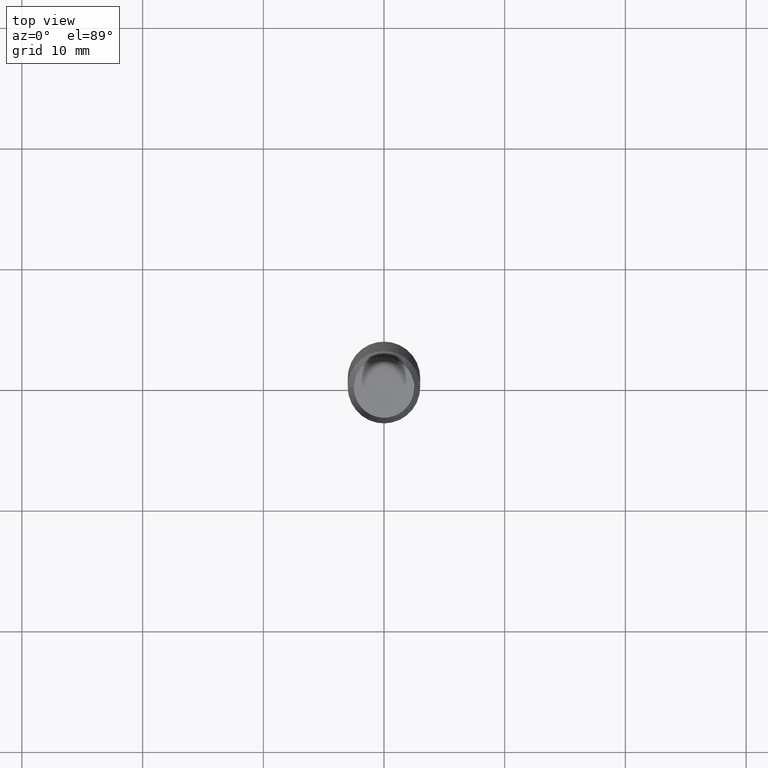
[diagram: clean part render]
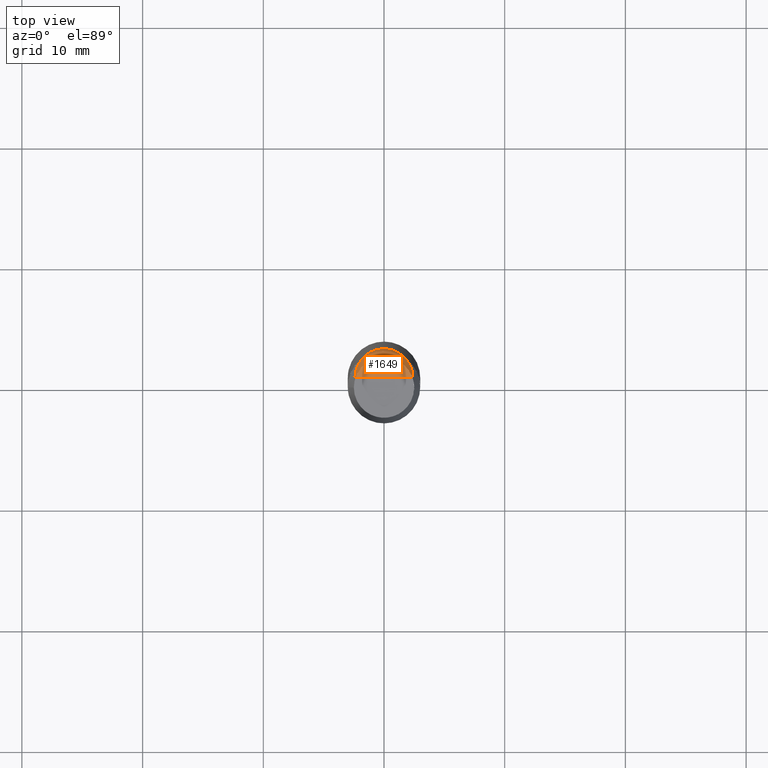
[diagram: same view with one face highlighted and labeled with its STEP entity id]
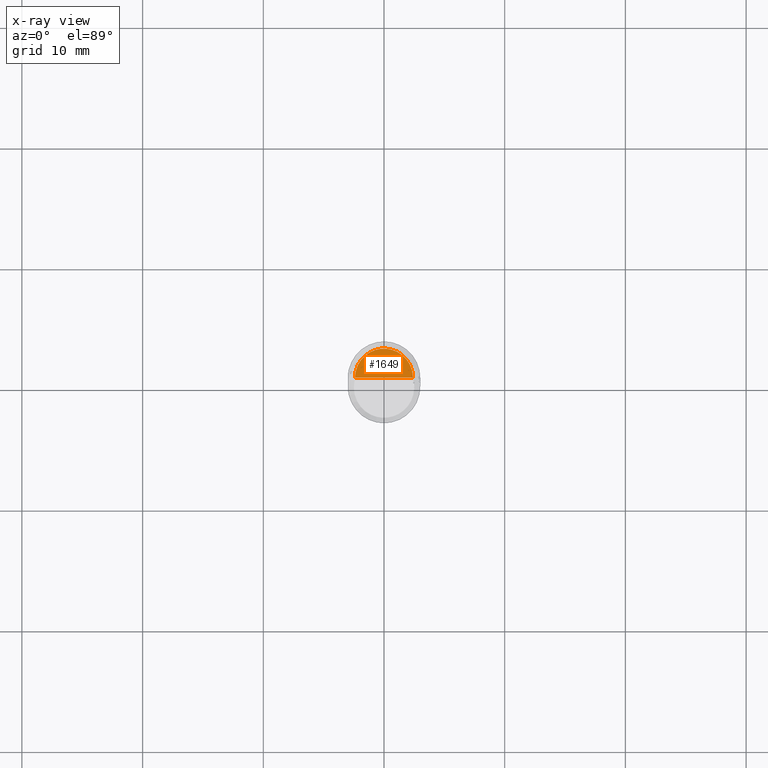
[diagram: x-ray of the same camera — body ghosted, the highlighted face saturated]
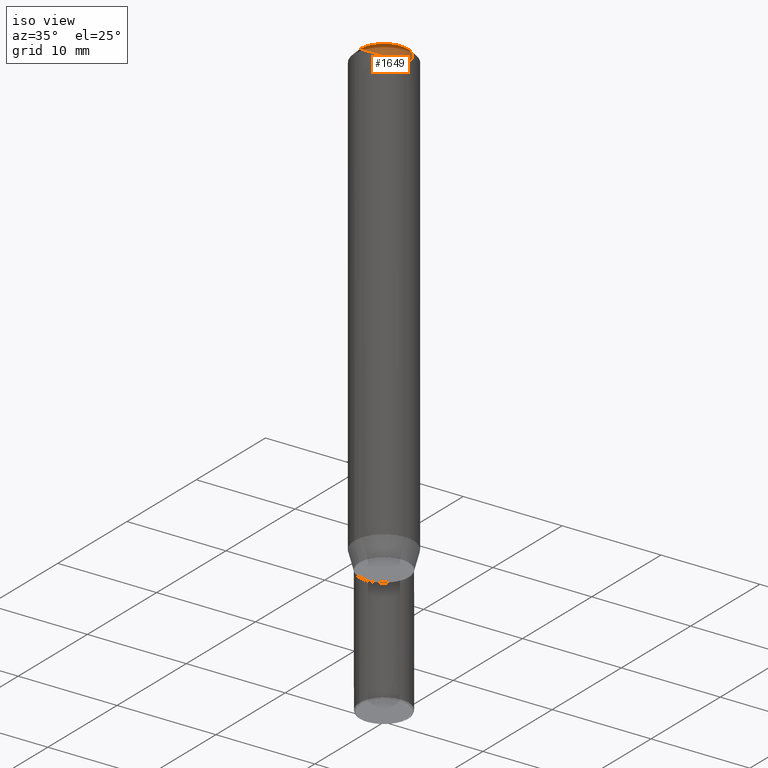
[diagram: same view with one face highlighted and labeled with its STEP entity id]
A machine part, top view. The second image highlights one B-rep face of the part: STEP entity #1649.
The next image is the same camera in x-ray: the body ghosted, the highlighted face saturated — about 0% of this face is hidden behind the body in this view.
A second angle (iso view) of the same face is appended — the face is thin or edge-on in the first view.
In plain terms, the highlighted face is a freeform B-spline surface patch.
Its self-contained STEP definition (entity closure, byte-faithful):
#1386=CARTESIAN_POINT('',(2.4,0.0,45.133974596216));
#1387=CARTESIAN_POINT('',(2.4,2.4,45.133974596216));
#1388=CARTESIAN_POINT('',(0.0,2.4,45.133974596216));
#1389=CARTESIAN_POINT('',(-2.4,2.4,45.133974596216));
#1390=CARTESIAN_POINT('',(-2.4,0.0,45.133974596216));
#1391=CARTESIAN_POINT('',(0.0,0.0,45.133974596216));
#1634=(
BOUNDED_SURFACE()
B_SPLINE_SURFACE(1,2,(
(#1386,#1387,#1388,#1389,#1390),
(#1391,#1391,#1391,#1391,#1391)
), .UNSPECIFIED.,.F.,.F.,.F.)
B_SPLINE_SURFACE_WITH_KNOTS((2,2),(3,2,3),(
0.0,1.0),(
0.0,0.5,1.0), .UNSPECIFIED.)
GEOMETRIC_REPRESENTATION_ITEM()
RATIONAL_B_SPLINE_SURFACE(((1.0,0.707106781187,1.0,0.707106781187,1.0),
(1.0,0.707106781187,1.0,0.707106781187,1.0)
))
REPRESENTATION_ITEM('')
SURFACE()
);
#1635=(
BOUNDED_CURVE()
B_SPLINE_CURVE(1,(#1391,#1386),.UNSPECIFIED.,.F.,.F.)
B_SPLINE_CURVE_WITH_KNOTS((2,2),
(0.0,1.0),.UNSPECIFIED.)
CURVE()
GEOMETRIC_REPRESENTATION_ITEM()
RATIONAL_B_SPLINE_CURVE((1.0,1.0))
REPRESENTATION_ITEM('')
);
#1636=(
BOUNDED_CURVE()
B_SPLINE_CURVE(2,(#1386,#1387,#1388,#1389,#1390),.UNSPECIFIED.,.F.,.F.)
B_SPLINE_CURVE_WITH_KNOTS((3,2,3),
(0.0,0.5,1.0),.UNSPECIFIED.)
CURVE()
GEOMETRIC_REPRESENTATION_ITEM()
RATIONAL_B_SPLINE_CURVE((1.0,0.707106781187,1.0,0.707106781187,1.0))
REPRESENTATION_ITEM('')
);
#1637=(
BOUNDED_CURVE()
B_SPLINE_CURVE(1,(#1390,#1391),.UNSPECIFIED.,.F.,.F.)
B_SPLINE_CURVE_WITH_KNOTS((2,2),
(0.0,1.0),.UNSPECIFIED.)
CURVE()
GEOMETRIC_REPRESENTATION_ITEM()
RATIONAL_B_SPLINE_CURVE((1.0,1.0))
REPRESENTATION_ITEM('')
);
#1638=VERTEX_POINT('',#1386);
#1639=VERTEX_POINT('',#1390);
#1640=VERTEX_POINT('',#1391);
#1641=EDGE_CURVE('',#1640,#1638,#1635,.T.);
#1642=EDGE_CURVE('',#1638,#1639,#1636,.T.);
#1643=EDGE_CURVE('',#1639,#1640,#1637,.T.);
#1644=ORIENTED_EDGE('',*,*,#1641,.T.);
#1645=ORIENTED_EDGE('',*,*,#1642,.T.);
#1646=ORIENTED_EDGE('',*,*,#1643,.T.);
#1647=EDGE_LOOP('',(#1644,#1645,#1646));
#1648=FACE_OUTER_BOUND('',#1647,.T.);
#1649=ADVANCED_FACE('',(#1648),#1634,.T.);